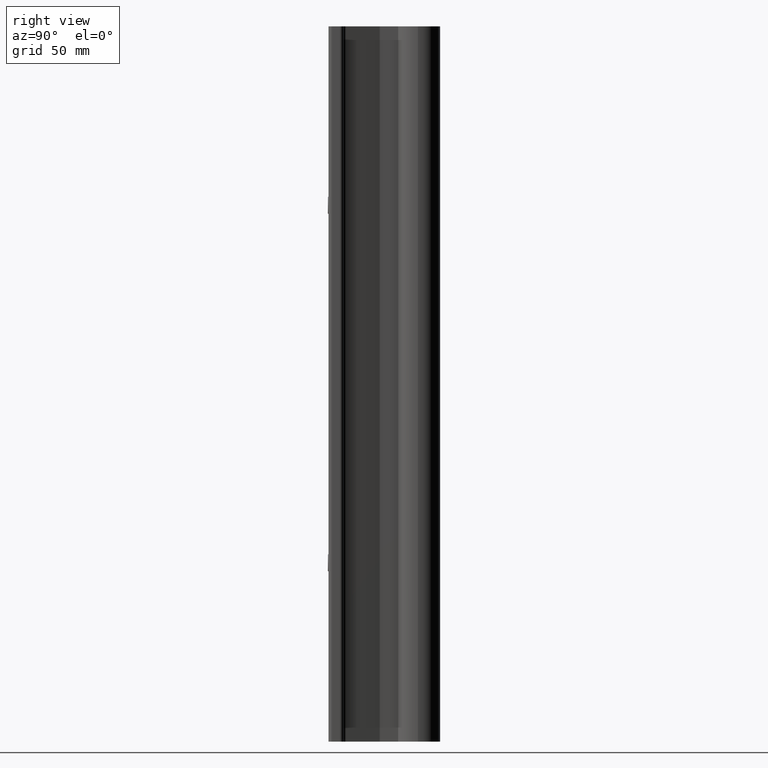
[diagram: clean part render]
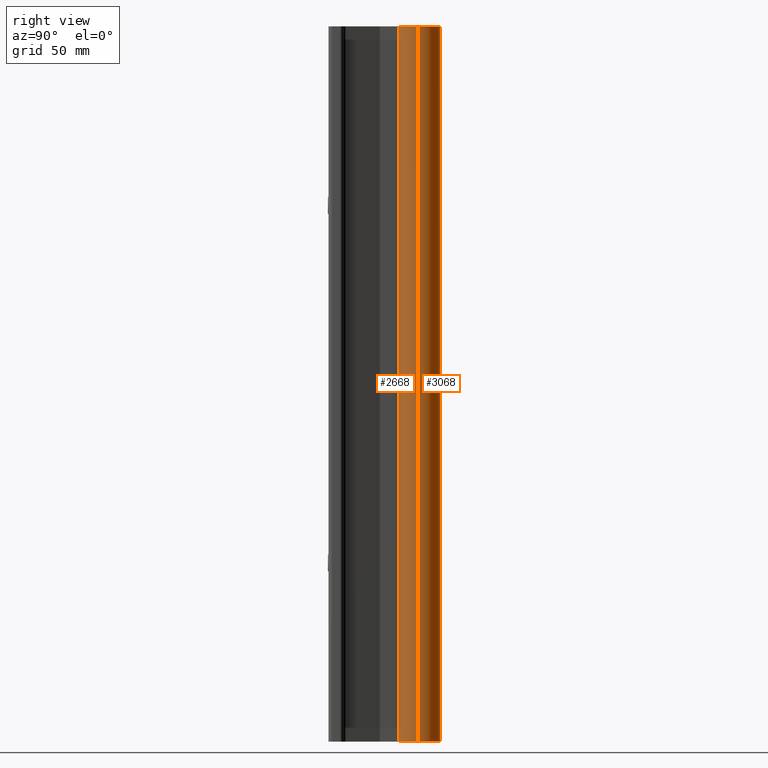
[diagram: same view with one multi-face feature highlighted, each face labeled with its STEP entity id]
A machine part, right view. The highlighted faces form ONE feature: a constant-radius fillet chain: 2 tangent blend faces with common blend radius 9.525 mm. The faces share edges in the B-rep.
Their STEP definitions:
[1] entity #3068 (Cylinder):
#105 = ORIENTED_EDGE ( 'NONE', *, *, #3694, .T. ) ;
#152 = ORIENTED_EDGE ( 'NONE', *, *, #1603, .F. ) ;
#208 = DIRECTION ( 'NONE',  ( 0.000000000000000000, 0.000000000000000000, 1.000000000000000000 ) ) ;
#483 = DIRECTION ( 'NONE',  ( 0.000000000000000000, 0.000000000000000000, 1.000000000000000000 ) ) ;
#536 = DIRECTION ( 'NONE',  ( 1.000000000000000000, 0.000000000000000000, 0.000000000000000000 ) ) ;
#615 = EDGE_CURVE ( 'NONE', #2673, #699, #2811, .T. ) ;
#699 = VERTEX_POINT ( 'NONE', #2170 ) ;
#748 = DIRECTION ( 'NONE',  ( 0.000000000000000000, 0.000000000000000000, 1.000000000000000000 ) ) ;
#751 = DIRECTION ( 'NONE',  ( 1.000000000000000000, 0.000000000000000000, 0.000000000000000000 ) ) ;
#870 = AXIS2_PLACEMENT_3D ( 'NONE', #1114, #3204, #536 ) ;
#897 = CARTESIAN_POINT ( 'NONE',  ( 0.3749999999999999445, 1.500000000000000222, -11.99999999999999822 ) ) ;
#965 = AXIS2_PLACEMENT_3D ( 'NONE', #1591, #483, #751 ) ;
#1114 = CARTESIAN_POINT ( 'NONE',  ( 0.000000000000000000, 1.500000000000000222, -11.99999999999999822 ) ) ;
#1587 = AXIS2_PLACEMENT_3D ( 'NONE', #2358, #3349, #2997 ) ;
#1591 = CARTESIAN_POINT ( 'NONE',  ( 0.000000000000000000, 1.500000000000000222, -11.99999999999999822 ) ) ;
#1603 = EDGE_CURVE ( 'NONE', #2525, #2056, #3287, .T. ) ;
#1611 = CYLINDRICAL_SURFACE ( 'NONE', #965, 0.3749999999999999445 ) ;
#1641 = CARTESIAN_POINT ( 'NONE',  ( -0.3749999999999999445, 1.500000000000000222, -11.99999999999999822 ) ) ;
#1653 = CIRCLE ( 'NONE', #1587, 0.3749999999999999445 ) ;
#1748 = CARTESIAN_POINT ( 'NONE',  ( 0.3749999999999999445, 1.500000000000000222, 0.000000000000000000 ) ) ;
#1960 = VECTOR ( 'NONE', #748, 39.37007874015748143 ) ;
#2056 = VERTEX_POINT ( 'NONE', #1748 ) ;
#2170 = CARTESIAN_POINT ( 'NONE',  ( -0.3749999999999999445, 1.500000000000000222, 0.000000000000000000 ) ) ;
#2206 = CARTESIAN_POINT ( 'NONE',  ( -0.3749999999999999445, 1.500000000000000222, -11.99999999999999822 ) ) ;
#2294 = CARTESIAN_POINT ( 'NONE',  ( 0.3749999999999999445, 1.500000000000000222, -11.99999999999999822 ) ) ;
#2357 = EDGE_LOOP ( 'NONE', ( #105, #3216, #2862, #152 ) ) ;
#2358 = CARTESIAN_POINT ( 'NONE',  ( 0.000000000000000000, 1.500000000000000222, 0.000000000000000000 ) ) ;
#2525 = VERTEX_POINT ( 'NONE', #897 ) ;
#2569 = EDGE_CURVE ( 'NONE', #2056, #699, #1653, .T. ) ;
#2673 = VERTEX_POINT ( 'NONE', #1641 ) ;
#2811 = LINE ( 'NONE', #2206, #1960 ) ;
#2862 = ORIENTED_EDGE ( 'NONE', *, *, #2569, .F. ) ;
#2956 = CIRCLE ( 'NONE', #870, 0.3749999999999999445 ) ;
#2997 = DIRECTION ( 'NONE',  ( 1.000000000000000000, 0.000000000000000000, 0.000000000000000000 ) ) ;
#3068 = ADVANCED_FACE ( 'NONE', ( #3721 ), #1611, .T. ) ;
#3204 = DIRECTION ( 'NONE',  ( 0.000000000000000000, 0.000000000000000000, 1.000000000000000000 ) ) ;
#3216 = ORIENTED_EDGE ( 'NONE', *, *, #615, .T. ) ;
#3287 = LINE ( 'NONE', #2294, #3739 ) ;
#3349 = DIRECTION ( 'NONE',  ( 0.000000000000000000, 0.000000000000000000, 1.000000000000000000 ) ) ;
#3694 = EDGE_CURVE ( 'NONE', #2525, #2673, #2956, .T. ) ;
#3721 = FACE_OUTER_BOUND ( 'NONE', #2357, .T. ) ;
#3739 = VECTOR ( 'NONE', #208, 39.37007874015748143 ) ;
[2] entity #2668 (Cylinder):
#2 = CIRCLE ( 'NONE', #2974, 0.3749999999999999445 ) ;
#24 = ORIENTED_EDGE ( 'NONE', *, *, #1529, .F. ) ;
#37 = ORIENTED_EDGE ( 'NONE', *, *, #815, .T. ) ;
#86 = CARTESIAN_POINT ( 'NONE',  ( -0.1209558938445397108, 1.145038597399876457, -3.032597620460292021 ) ) ;
#113 = CARTESIAN_POINT ( 'NONE',  ( 0.1241678343262123674, 1.146149400175753064, -2.983438654594587014 ) ) ;
#180 = CARTESIAN_POINT ( 'NONE',  ( -0.008323276755297724649, 1.125000000000000222, -3.124999999999999112 ) ) ;
#198 = CARTESIAN_POINT ( 'NONE',  ( -0.04047420807541071003, 1.127113368225226786, -8.881453399247499547 ) ) ;
#208 = DIRECTION ( 'NONE',  ( 0.000000000000000000, 0.000000000000000000, 1.000000000000000000 ) ) ;
#316 = CARTESIAN_POINT ( 'NONE',  ( 0.04052490638182602856, 1.127118274301450285, -9.118531605065490098 ) ) ;
#363 = CARTESIAN_POINT ( 'NONE',  ( -0.1185723957054426320, 1.144223880012038563, -2.959584239679654782 ) ) ;
#369 = DIRECTION ( 'NONE',  ( 0.000000000000000000, 0.000000000000000000, 1.000000000000000000 ) ) ;
#374 = CARTESIAN_POINT ( 'NONE',  ( 0.09994538311842349199, 1.138369034816674841, -8.923172858807872032 ) ) ;
#412 = CARTESIAN_POINT ( 'NONE',  ( -0.06284423705968483764, 1.130239494261857436, -2.891640906174729242 ) ) ;
#423 = DIRECTION ( 'NONE',  ( 0.000000000000000000, 0.000000000000000000, 1.000000000000000000 ) ) ;
#432 = CARTESIAN_POINT ( 'NONE',  ( 0.000000000000000000, 1.500000000000000222, -11.99999999999999822 ) ) ;
#450 = CYLINDRICAL_SURFACE ( 'NONE', #714, 0.3749999999999999445 ) ;
#477 = CARTESIAN_POINT ( 'NONE',  ( 0.01649640680358269509, 1.125276643179092595, -3.124176879621411551 ) ) ;
#497 = CARTESIAN_POINT ( 'NONE',  ( -0.01648624209988766923, 1.125274797949223693, -8.875817358519734412 ) ) ;
#514 = CARTESIAN_POINT ( 'NONE',  ( 0.1083932797338998250, 1.140975780241187287, -3.062792534659057875 ) ) ;
#535 = CARTESIAN_POINT ( 'NONE',  ( 0.07629384564802857427, 1.132778678738117550, -3.099349498394039948 ) ) ;
#567 = CARTESIAN_POINT ( 'NONE',  ( -0.1209544131638265879, 1.145038121379763796, -8.967407062744349844 ) ) ;
#568 = CARTESIAN_POINT ( 'NONE',  ( -0.1241761983711994893, 1.146152325010479256, -2.983491172639069600 ) ) ;
#576 = CARTESIAN_POINT ( 'NONE',  ( 0.03266774632321148980, 1.126337263159386426, -8.879061183262795254 ) ) ;
#610 = CARTESIAN_POINT ( 'NONE',  ( 0.1209654137732475571, 1.145041858245552380, -9.032560678855006131 ) ) ;
#615 = EDGE_CURVE ( 'NONE', #2673, #699, #2811, .T. ) ;
#635 = EDGE_LOOP ( 'NONE', ( #1466, #2578 ) ) ;
#638 = CARTESIAN_POINT ( 'NONE',  ( -8.374947378705658195E-17, 1.125000000000000222, -9.125000000000000000 ) ) ;
#649 = CARTESIAN_POINT ( 'NONE',  ( 0.1083932797338995196, 1.140975780241187065, -9.062792534659058319 ) ) ;
#655 = CARTESIAN_POINT ( 'NONE',  ( -0.09933638728234459037, 1.138365720413012649, -2.923690985503739181 ) ) ;
#667 = CARTESIAN_POINT ( 'NONE',  ( 0.1122679117759137063, 1.142184748809114136, -9.055563895318959666 ) ) ;
#699 = VERTEX_POINT ( 'NONE', #2170 ) ;
#714 = AXIS2_PLACEMENT_3D ( 'NONE', #3455, #2535, #3693 ) ;
#728 = CARTESIAN_POINT ( 'NONE',  ( -0.1249959074323481467, 1.146445162465756562, -9.008282252000103796 ) ) ;
#740 = FACE_OUTER_BOUND ( 'NONE', #3675, .T. ) ;
#745 = CARTESIAN_POINT ( 'NONE',  ( 0.06287984198914980949, 1.130245640486009728, -2.891661897271242676 ) ) ;
#748 = DIRECTION ( 'NONE',  ( 0.000000000000000000, 0.000000000000000000, 1.000000000000000000 ) ) ;
#778 = CARTESIAN_POINT ( 'NONE',  ( 0.000000000000000000, 1.500000000000000222, 0.000000000000000000 ) ) ;
#782 = EDGE_LOOP ( 'NONE', ( #37, #1873 ) ) ;
#788 = CARTESIAN_POINT ( 'NONE',  ( -0.1083646537625427148, 1.140967728712819707, -8.937167800081306623 ) ) ;
#807 = CARTESIAN_POINT ( 'NONE',  ( -0.05552849340515732951, 1.129056354555277197, -8.887714451110316105 ) ) ;
#809 = CARTESIAN_POINT ( 'NONE',  ( -0.1091466335872149501, 1.141175278546628924, -3.063059904851265447 ) ) ;
#815 = EDGE_CURVE ( 'NONE', #2222, #2449, #3007, .T. ) ;
#850 = CARTESIAN_POINT ( 'NONE',  ( 0.01645178346242937711, 1.125272950837598929, -8.875811764387533387 ) ) ;
#852 = CARTESIAN_POINT ( 'NONE',  ( 2.097213048189285219E-15, 1.125000000000000222, -8.874999999999998224 ) ) ;
#897 = CARTESIAN_POINT ( 'NONE',  ( 0.3749999999999999445, 1.500000000000000222, -11.99999999999999822 ) ) ;
#939 = CARTESIAN_POINT ( 'NONE',  ( 0.1249990179307815252, 1.146446262192827081, -9.008251769670570397 ) ) ;
#979 = CARTESIAN_POINT ( 'NONE',  ( -0.05564380897423275296, 1.129073007461675715, -9.112231007283426720 ) ) ;
#994 = CARTESIAN_POINT ( 'NONE',  ( 0.1090963977429626336, 1.141158716857181288, -2.936805113730584171 ) ) ;
#1009 = FACE_BOUND ( 'NONE', #782, .T. ) ;
#1015 = CARTESIAN_POINT ( 'NONE',  ( 0.1209654137732474183, 1.145041858245552380, -3.032560678855006575 ) ) ;
#1016 = CARTESIAN_POINT ( 'NONE',  ( -0.03255629333503181483, 1.126329225507830323, -9.120963434814337134 ) ) ;
#1038 = CARTESIAN_POINT ( 'NONE',  ( -0.1091466335872150334, 1.141175278546629146, -9.063059904851265003 ) ) ;
#1071 = VERTEX_POINT ( 'NONE', #852 ) ;
#1079 = CARTESIAN_POINT ( 'NONE',  ( 0.08267656770183459680, 1.134179936560775870, -3.094102152162706343 ) ) ;
#1084 = CARTESIAN_POINT ( 'NONE',  ( -0.03255629333503186340, 1.126329225507830101, -3.120963434814338022 ) ) ;
#1113 = CARTESIAN_POINT ( 'NONE',  ( 0.09413140612909398630, 1.136958663453053076, -3.082643259064298480 ) ) ;
#1122 = CARTESIAN_POINT ( 'NONE',  ( 0.008197098410217915077, 1.125000000000000666, -8.874999999999998224 ) ) ;
#1151 = CIRCLE ( 'NONE', #3364, 0.3749999999999999445 ) ;
#1156 = CARTESIAN_POINT ( 'NONE',  ( -0.03267150337677333927, 1.126337925261778006, -8.879063250040800881 ) ) ;
#1173 = CARTESIAN_POINT ( 'NONE',  ( -0.1122437319770860781, 1.142176852049964886, -2.944374544159568341 ) ) ;
#1231 = CARTESIAN_POINT ( 'NONE',  ( 0.07629384564802829671, 1.132778678738117550, -9.099349498394039060 ) ) ;
#1238 = CARTESIAN_POINT ( 'NONE',  ( -0.1241888673462583081, 1.146156742583905874, -3.016433451939814603 ) ) ;
#1289 = CARTESIAN_POINT ( 'NONE',  ( 0.07637577337513082321, 1.132795830430083361, -2.900713745801356769 ) ) ;
#1291 = CARTESIAN_POINT ( 'NONE',  ( -0.1209558938445397247, 1.145038597399876457, -9.032597620460290244 ) ) ;
#1305 = CARTESIAN_POINT ( 'NONE',  ( 0.1250009802955067140, 1.146446955993523975, -2.991778010489037243 ) ) ;
#1330 = CARTESIAN_POINT ( 'NONE',  ( -0.008323276755297761079, 1.125000000000000666, -9.125000000000000000 ) ) ;
#1356 = CARTESIAN_POINT ( 'NONE',  ( -0.09986561048412578856, 1.138350464728789646, -9.076900852288481758 ) ) ;
#1399 = CARTESIAN_POINT ( 'NONE',  ( -0.07634699348806622821, 1.132789384939130617, -3.099310559574415702 ) ) ;
#1466 = ORIENTED_EDGE ( 'NONE', *, *, #3578, .T. ) ;
#1490 = CARTESIAN_POINT ( 'NONE',  ( 0.09927870683307861432, 1.138349295819229168, -9.076392040618980417 ) ) ;
#1529 = EDGE_CURVE ( 'NONE', #699, #2056, #2, .T. ) ;
#1531 = CARTESIAN_POINT ( 'NONE',  ( 0.1241678343262125617, 1.146149400175753064, -8.983438654594586126 ) ) ;
#1561 = CARTESIAN_POINT ( 'NONE',  ( 0.008197098410217954975, 1.125000000000000666, -2.874999999999999112 ) ) ;
#1603 = EDGE_CURVE ( 'NONE', #2525, #2056, #3287, .T. ) ;
#1606 = CARTESIAN_POINT ( 'NONE',  ( 2.097213048187297684E-15, 1.125000000000000222, -2.875000000000000000 ) ) ;
#1614 = DIRECTION ( 'NONE',  ( 1.000000000000000000, 0.000000000000000000, 0.000000000000000000 ) ) ;
#1628 = CARTESIAN_POINT ( 'NONE',  ( 0.01645178346242905446, 1.125272950837598929, -2.875811764387531611 ) ) ;
#1641 = CARTESIAN_POINT ( 'NONE',  ( -0.3749999999999999445, 1.500000000000000222, -11.99999999999999822 ) ) ;
#1683 = B_SPLINE_CURVE_WITH_KNOTS ( 'NONE', 3,
 ( #2076, #1122, #850, #576, #2326, #2060, #3548, #2642, #3268, #374, #2129, #2171, #3659, #1531, #3339, #939, #3383, #610, #3063, #667, #649, #1490, #3080, #2735, #1231, #1843, #2438, #316, #1862, #2148, #1803, #1822 ),
 .UNSPECIFIED., .F., .F.,
 ( 4, 2, 2, 2, 2, 2, 2, 2, 2, 2, 2, 2, 2, 2, 2, 4 ),
 ( 0.009998574125601069132, 0.01062332590191391798, 0.01124807767822676857, 0.01187282945453961742, 0.01249758123085246628, 0.01374708478347816398, 0.01437183655979101457, 0.01499658833610386516, 0.01562134011241671575, 0.01624609188872956633, 0.01687084366504241692, 0.01749559544135526751, 0.01812034721766811809, 0.01874509899398096868, 0.01936985077029381927, 0.01999460254660666986 ),
 .UNSPECIFIED. ) ;
#1694 = CARTESIAN_POINT ( 'NONE',  ( -0.05564380897423287786, 1.129073007461675493, -3.112231007283425388 ) ) ;
#1700 = EDGE_CURVE ( 'NONE', #1071, #2630, #1683, .T. ) ;
#1713 = CARTESIAN_POINT ( 'NONE',  ( -0.08260014785982905394, 1.134162219015206530, -8.905827788982144000 ) ) ;
#1731 = CARTESIAN_POINT ( 'NONE',  ( -0.09411010042740713955, 1.136952681569074031, -8.917329093678610263 ) ) ;
#1742 = CARTESIAN_POINT ( 'NONE',  ( 0.03255240335413747688, 1.126328932588529730, -3.120964333197061347 ) ) ;
#1748 = CARTESIAN_POINT ( 'NONE',  ( 0.3749999999999999445, 1.500000000000000222, 0.000000000000000000 ) ) ;
#1764 = CARTESIAN_POINT ( 'NONE',  ( -0.1250040618164579842, 1.146448045475507937, -2.991841746362331467 ) ) ;
#1766 = CARTESIAN_POINT ( 'NONE',  ( 6.354236240045021498E-17, 1.125000000000000222, -3.124999999999999556 ) ) ;
#1803 = CARTESIAN_POINT ( 'NONE',  ( 0.008321157592743280706, 1.125000000000000000, -9.125000000000000000 ) ) ;
#1822 = CARTESIAN_POINT ( 'NONE',  ( -8.374947378705658195E-17, 1.125000000000000222, -9.125000000000000000 ) ) ;
#1843 = CARTESIAN_POINT ( 'NONE',  ( 0.06278460617192910265, 1.130229337425312286, -9.108393574268717430 ) ) ;
#1849 = CARTESIAN_POINT ( 'NONE',  ( -0.07635022463610419141, 1.132790423690561488, -2.900693733610288483 ) ) ;
#1862 = CARTESIAN_POINT ( 'NONE',  ( 0.03255240335413719238, 1.126328932588529730, -9.120964333197060014 ) ) ;
#1873 = ORIENTED_EDGE ( 'NONE', *, *, #2372, .T. ) ;
#1878 = CARTESIAN_POINT ( 'NONE',  ( 0.08263376477293320199, 1.134169548060882216, -2.905854988304941156 ) ) ;
#1930 = CARTESIAN_POINT ( 'NONE',  ( -0.1250040618164579009, 1.146448045475507715, -8.991841746362331023 ) ) ;
#1960 = VECTOR ( 'NONE', #748, 39.37007874015748143 ) ;
#2030 = CARTESIAN_POINT ( 'NONE',  ( -0.1122437319770857866, 1.142176852049964886, -8.944374544159565232 ) ) ;
#2056 = VERTEX_POINT ( 'NONE', #1748 ) ;
#2060 = CARTESIAN_POINT ( 'NONE',  ( 0.05556862442868313462, 1.129062064057325454, -8.887733112153872739 ) ) ;
#2067 = CARTESIAN_POINT ( 'NONE',  ( 2.097213048189285219E-15, 1.125000000000000222, -8.874999999999998224 ) ) ;
#2076 = CARTESIAN_POINT ( 'NONE',  ( 2.097213048189285219E-15, 1.125000000000000222, -8.874999999999998224 ) ) ;
#2088 = CARTESIAN_POINT ( 'NONE',  ( -0.1249959074323481467, 1.146445162465756562, -3.008282252000103796 ) ) ;
#2129 = CARTESIAN_POINT ( 'NONE',  ( 0.1090963977429626197, 1.141158716857181288, -8.936805113730583727 ) ) ;
#2148 = CARTESIAN_POINT ( 'NONE',  ( 0.01649640680358238978, 1.125276643179092817, -9.124176879621410663 ) ) ;
#2170 = CARTESIAN_POINT ( 'NONE',  ( -0.3749999999999999445, 1.500000000000000222, 0.000000000000000000 ) ) ;
#2171 = CARTESIAN_POINT ( 'NONE',  ( 0.1185730390998943617, 1.144224147783138745, -8.959588506444465139 ) ) ;
#2198 = CARTESIAN_POINT ( 'NONE',  ( -0.03267150337677346417, 1.126337925261778006, -2.879063250040802657 ) ) ;
#2203 = CARTESIAN_POINT ( 'NONE',  ( 0.1185730390998943201, 1.144224147783138967, -2.959588506444464251 ) ) ;
#2206 = CARTESIAN_POINT ( 'NONE',  ( -0.3749999999999999445, 1.500000000000000222, -11.99999999999999822 ) ) ;
#2222 = VERTEX_POINT ( 'NONE', #1766 ) ;
#2224 = CARTESIAN_POINT ( 'NONE',  ( 0.1209500571403312325, 1.145036647307089428, -2.967396121079697746 ) ) ;
#2226 = CARTESIAN_POINT ( 'NONE',  ( -0.04052925131259992736, 1.127118722568794862, -9.118530216658257359 ) ) ;
#2262 = CARTESIAN_POINT ( 'NONE',  ( -0.1241761983711994755, 1.146152325010479256, -8.983491172639070044 ) ) ;
#2284 = CARTESIAN_POINT ( 'NONE',  ( 6.354236240045021498E-17, 1.125000000000000222, -3.124999999999999556 ) ) ;
#2289 = CARTESIAN_POINT ( 'NONE',  ( -0.04052925131260003838, 1.127118722568794640, -3.118530216658257359 ) ) ;
#2294 = CARTESIAN_POINT ( 'NONE',  ( 0.3749999999999999445, 1.500000000000000222, -11.99999999999999822 ) ) ;
#2319 = CARTESIAN_POINT ( 'NONE',  ( -0.1185723957054424654, 1.144223880012038563, -8.959584239679655226 ) ) ;
#2326 = CARTESIAN_POINT ( 'NONE',  ( 0.04048540440161972620, 1.127114285105013103, -8.881456091856273716 ) ) ;
#2356 = EDGE_CURVE ( 'NONE', #2673, #2525, #1151, .T. ) ;
#2372 = EDGE_CURVE ( 'NONE', #2449, #2222, #3151, .T. ) ;
#2375 = CARTESIAN_POINT ( 'NONE',  ( -0.1083646537625426315, 1.140967728712819484, -2.937167800081305735 ) ) ;
#2385 = ORIENTED_EDGE ( 'NONE', *, *, #1603, .T. ) ;
#2438 = CARTESIAN_POINT ( 'NONE',  ( 0.05563716654445806375, 1.129072035165736620, -9.112234197709792483 ) ) ;
#2449 = VERTEX_POINT ( 'NONE', #3477 ) ;
#2469 = CARTESIAN_POINT ( 'NONE',  ( -0.05552849340515753074, 1.129056354555277419, -2.887714451110316105 ) ) ;
#2487 = CARTESIAN_POINT ( 'NONE',  ( -0.08260014785982948415, 1.134162219015207640, -2.905827788982146664 ) ) ;
#2495 = CARTESIAN_POINT ( 'NONE',  ( 0.09994538311842336709, 1.138369034816674841, -2.923172858807872920 ) ) ;
#2513 = CARTESIAN_POINT ( 'NONE',  ( 0.1241918054842635760, 1.146157790565254464, -3.016408064705827563 ) ) ;
#2514 = CARTESIAN_POINT ( 'NONE',  ( -8.374947378705658195E-17, 1.125000000000000222, -9.125000000000000000 ) ) ;
#2525 = VERTEX_POINT ( 'NONE', #897 ) ;
#2535 = DIRECTION ( 'NONE',  ( 0.000000000000000000, 0.000000000000000000, 1.000000000000000000 ) ) ;
#2540 = DIRECTION ( 'NONE',  ( 1.000000000000000000, 0.000000000000000000, 0.000000000000000000 ) ) ;
#2542 = CARTESIAN_POINT ( 'NONE',  ( -0.07634699348806610331, 1.132789384939130839, -9.099310559574416146 ) ) ;
#2561 = CARTESIAN_POINT ( 'NONE',  ( -0.1185237875825029402, 1.144208060990028475, -9.040536977969692245 ) ) ;
#2578 = ORIENTED_EDGE ( 'NONE', *, *, #1700, .T. ) ;
#2606 = CARTESIAN_POINT ( 'NONE',  ( -0.08270888014692280577, 1.134187380241394427, -3.094072904998501627 ) ) ;
#2617 = CARTESIAN_POINT ( 'NONE',  ( 0.04052490638182626448, 1.127118274301450285, -3.118531605065489209 ) ) ;
#2630 = VERTEX_POINT ( 'NONE', #638 ) ;
#2642 = CARTESIAN_POINT ( 'NONE',  ( 0.07637577337513055953, 1.132795830430083805, -8.900713745801358101 ) ) ;
#2654 = CARTESIAN_POINT ( 'NONE',  ( 0.1122679117759137896, 1.142184748809114136, -3.055563895318961443 ) ) ;
#2668 = ADVANCED_FACE ( 'NONE', ( #740, #1009, #3136 ), #450, .T. ) ;
#2673 = VERTEX_POINT ( 'NONE', #1641 ) ;
#2688 = CARTESIAN_POINT ( 'NONE',  ( -0.01648624209988772474, 1.125274797949223693, -2.875817358519734857 ) ) ;
#2735 = CARTESIAN_POINT ( 'NONE',  ( 0.08267656770183509640, 1.134179936560776092, -9.094102152162705011 ) ) ;
#2764 = CARTESIAN_POINT ( 'NONE',  ( 0.03266774632321121918, 1.126337263159386426, -2.879061183262796586 ) ) ;
#2788 = CARTESIAN_POINT ( 'NONE',  ( 0.04048540440161958048, 1.127114285105013103, -2.881456091856274604 ) ) ;
#2811 = LINE ( 'NONE', #2206, #1960 ) ;
#2828 = CARTESIAN_POINT ( 'NONE',  ( 0.1249990179307815669, 1.146446262192827081, -3.008251769670571285 ) ) ;
#2882 = CARTESIAN_POINT ( 'NONE',  ( 6.354236240045021498E-17, 1.125000000000000222, -3.124999999999999556 ) ) ;
#2906 = CARTESIAN_POINT ( 'NONE',  ( -0.06280237164814428397, 1.130232016876234979, -3.108385020980847901 ) ) ;
#2940 = CARTESIAN_POINT ( 'NONE',  ( -0.07635022463610424692, 1.132790423690561266, -8.900693733610289371 ) ) ;
#2974 = AXIS2_PLACEMENT_3D ( 'NONE', #778, #423, #1614 ) ;
#3007 = B_SPLINE_CURVE_WITH_KNOTS ( 'NONE', 3,
 ( #2882, #180, #3803, #1084, #2289, #1694, #2906, #1399, #2606, #3830, #809, #3224, #86, #1238, #2088, #1764, #568, #3119, #363, #1173, #2375, #655, #3281, #2487, #1849, #412, #2469, #3070, #2198, #2688, #3411, #3914 ),
 .UNSPECIFIED., .F., .F.,
 ( 4, 2, 2, 2, 2, 2, 2, 2, 2, 2, 2, 2, 2, 2, 2, 4 ),
 ( 1.566876027423624901E-18, 0.0006249108828500791806, 0.001249821765700156843, 0.001874732648550234398, 0.002499643531400312386, 0.003749465297100469229, 0.004374376179950528569, 0.004999287062800588342, 0.005624197945650648983, 0.006249108828500708757, 0.006874019711350768530, 0.007498930594200827436, 0.008123841477050888077, 0.008748752359900947850, 0.009373663242751009358, 0.009998574125601069132 ),
 .UNSPECIFIED. ) ;
#3063 = CARTESIAN_POINT ( 'NONE',  ( 0.1185326186922871505, 1.144210938468774863, -9.040514797093033295 ) ) ;
#3070 = CARTESIAN_POINT ( 'NONE',  ( -0.04047420807541089738, 1.127113368225227230, -2.881453399247499991 ) ) ;
#3080 = CARTESIAN_POINT ( 'NONE',  ( 0.09413140612909440264, 1.136958663453053076, -9.082643259064298036 ) ) ;
#3100 = CARTESIAN_POINT ( 'NONE',  ( -0.1241888673462582665, 1.146156742583905874, -9.016433451939814603 ) ) ;
#3119 = CARTESIAN_POINT ( 'NONE',  ( -0.1209544131638264214, 1.145038121379763574, -2.967407062744348512 ) ) ;
#3133 = ORIENTED_EDGE ( 'NONE', *, *, #2356, .T. ) ;
#3136 = FACE_BOUND ( 'NONE', #635, .T. ) ;
#3151 = B_SPLINE_CURVE_WITH_KNOTS ( 'NONE', 3,
 ( #1606, #1561, #1628, #2764, #2788, #3398, #745, #1289, #1878, #2495, #994, #2203, #2224, #113, #1305, #2828, #2513, #1015, #3841, #2654, #514, #3798, #1113, #1079, #535, #3186, #3241, #2617, #1742, #477, #3220, #2284 ),
 .UNSPECIFIED., .F., .F.,
 ( 4, 2, 2, 2, 2, 2, 2, 2, 2, 2, 2, 2, 2, 2, 2, 4 ),
 ( 0.009998574125601069132, 0.01062332590191391798, 0.01124807767822676684, 0.01187282945453961569, 0.01249758123085246454, 0.01374708478347816398, 0.01437183655979101284, 0.01499658833610386169, 0.01562134011241671228, 0.01624609188872956286, 0.01687084366504241345, 0.01749559544135526057, 0.01812034721766811463, 0.01874509899398096174, 0.01936985077029381580, 0.01999460254660666292 ),
 .UNSPECIFIED. ) ;
#3186 = CARTESIAN_POINT ( 'NONE',  ( 0.06278460617192940796, 1.130229337425312286, -3.108393574268719206 ) ) ;
#3220 = CARTESIAN_POINT ( 'NONE',  ( 0.008321157592743225195, 1.125000000000000222, -3.125000000000000888 ) ) ;
#3221 = CARTESIAN_POINT ( 'NONE',  ( -0.09933638728234467363, 1.138365720413012872, -8.923690985503739626 ) ) ;
#3224 = CARTESIAN_POINT ( 'NONE',  ( -0.1185237875825029957, 1.144208060990028475, -3.040536977969694465 ) ) ;
#3233 = B_SPLINE_CURVE_WITH_KNOTS ( 'NONE', 3,
 ( #2514, #1330, #3735, #1016, #2226, #979, #3459, #2542, #3443, #1356, #1038, #2561, #1291, #3100, #728, #1930, #2262, #567, #2319, #2030, #788, #3221, #1731, #1713, #2940, #3859, #807, #198, #1156, #497, #3277, #2067 ),
 .UNSPECIFIED., .F., .F.,
 ( 4, 2, 2, 2, 2, 2, 2, 2, 2, 2, 2, 2, 2, 2, 2, 4 ),
 ( 2.065158389285055442E-18, 0.0006249108828500682302, 0.001249821765700134509, 0.001874732648550200571, 0.002499643531400266849, 0.003749465297100398973, 0.004374376179950465252, 0.004999287062800531964, 0.005624197945650598676, 0.006249108828500666256, 0.006874019711350732968, 0.007498930594200801415, 0.008123841477050867260, 0.008748752359900935707, 0.009373663242751002420, 0.009998574125601069132 ),
 .UNSPECIFIED. ) ;
#3241 = CARTESIAN_POINT ( 'NONE',  ( 0.05563716654445831356, 1.129072035165736620, -3.112234197709794259 ) ) ;
#3268 = CARTESIAN_POINT ( 'NONE',  ( 0.08263376477293328526, 1.134169548060882216, -8.905854988304941600 ) ) ;
#3277 = CARTESIAN_POINT ( 'NONE',  ( -0.008199185978417122822, 1.125000000000000222, -8.874999999999998224 ) ) ;
#3281 = CARTESIAN_POINT ( 'NONE',  ( -0.09411010042740750037, 1.136952681569073809, -2.917329093678609819 ) ) ;
#3287 = LINE ( 'NONE', #2294, #3739 ) ;
#3339 = CARTESIAN_POINT ( 'NONE',  ( 0.1250009802955067695, 1.146446955993523975, -8.991778010489039019 ) ) ;
#3354 = ORIENTED_EDGE ( 'NONE', *, *, #615, .F. ) ;
#3364 = AXIS2_PLACEMENT_3D ( 'NONE', #432, #369, #2540 ) ;
#3383 = CARTESIAN_POINT ( 'NONE',  ( 0.1241918054842636593, 1.146157790565254464, -9.016408064705826675 ) ) ;
#3398 = CARTESIAN_POINT ( 'NONE',  ( 0.05556862442868306523, 1.129062064057325454, -2.887733112153873183 ) ) ;
#3411 = CARTESIAN_POINT ( 'NONE',  ( -0.008199185978417157517, 1.125000000000000222, -2.875000000000000000 ) ) ;
#3443 = CARTESIAN_POINT ( 'NONE',  ( -0.08270888014692261148, 1.134187380241394205, -9.094072904998501627 ) ) ;
#3455 = CARTESIAN_POINT ( 'NONE',  ( 0.000000000000000000, 1.500000000000000222, -11.99999999999999822 ) ) ;
#3459 = CARTESIAN_POINT ( 'NONE',  ( -0.06280237164814420070, 1.130232016876234979, -9.108385020980847457 ) ) ;
#3477 = CARTESIAN_POINT ( 'NONE',  ( 2.097213048187297684E-15, 1.125000000000000222, -2.875000000000000000 ) ) ;
#3548 = CARTESIAN_POINT ( 'NONE',  ( 0.06287984198914953193, 1.130245640486009728, -8.891661897271243120 ) ) ;
#3578 = EDGE_CURVE ( 'NONE', #2630, #1071, #3233, .T. ) ;
#3659 = CARTESIAN_POINT ( 'NONE',  ( 0.1209500571403314823, 1.145036647307089650, -8.967396121079699967 ) ) ;
#3675 = EDGE_LOOP ( 'NONE', ( #3354, #3133, #2385, #24 ) ) ;
#3693 = DIRECTION ( 'NONE',  ( 1.000000000000000000, 0.000000000000000000, 0.000000000000000000 ) ) ;
#3735 = CARTESIAN_POINT ( 'NONE',  ( -0.01649604049918379153, 1.125276581205358672, -9.124177072946856981 ) ) ;
#3739 = VECTOR ( 'NONE', #208, 39.37007874015748143 ) ;
#3798 = CARTESIAN_POINT ( 'NONE',  ( 0.09927870683307894739, 1.138349295819229168, -3.076392040618979529 ) ) ;
#3803 = CARTESIAN_POINT ( 'NONE',  ( -0.01649604049918383664, 1.125276581205358895, -3.124177072946855649 ) ) ;
#3830 = CARTESIAN_POINT ( 'NONE',  ( -0.09986561048412598285, 1.138350464728789202, -3.076900852288477761 ) ) ;
#3841 = CARTESIAN_POINT ( 'NONE',  ( 0.1185326186922871922, 1.144210938468774863, -3.040514797093034627 ) ) ;
#3859 = CARTESIAN_POINT ( 'NONE',  ( -0.06284423705968493479, 1.130239494261857214, -8.891640906174727021 ) ) ;
#3914 = CARTESIAN_POINT ( 'NONE',  ( 2.097213048187297684E-15, 1.125000000000000222, -2.875000000000000000 ) ) ;